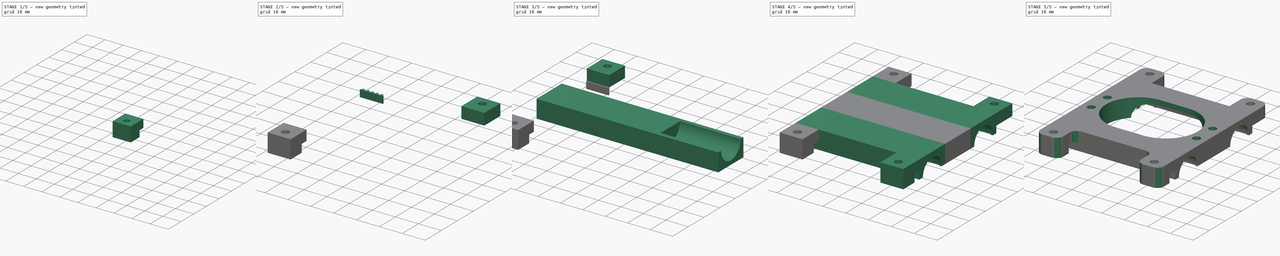
[diagram: build sequence overview — one tinted view per stage of 5, left to right]
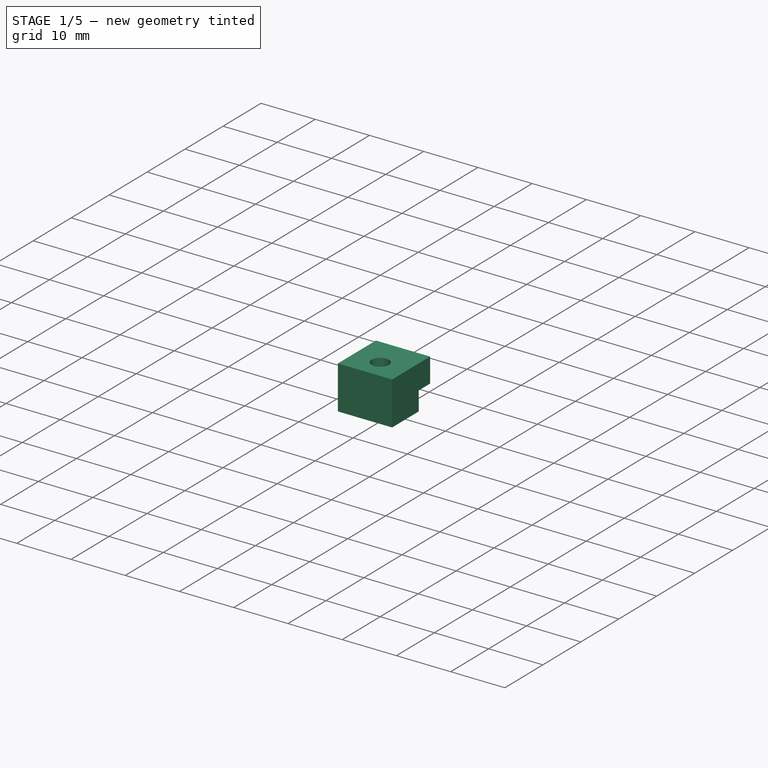
[diagram: stage 1 of 5 — iso view after this stage's code; geometry added in this stage tinted green]
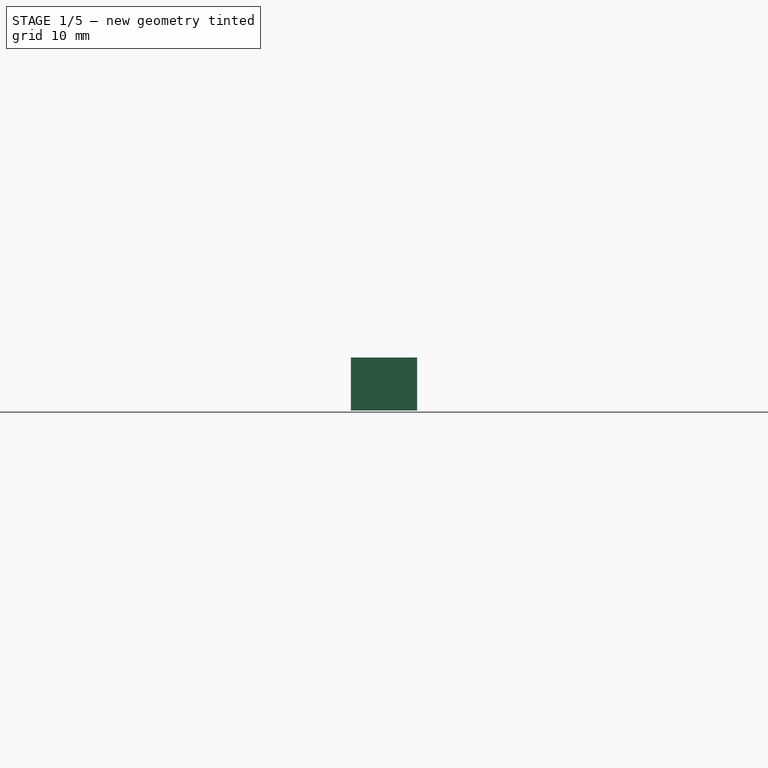
[diagram: stage 1 of 5 — front view after this stage's code; geometry added in this stage tinted green]
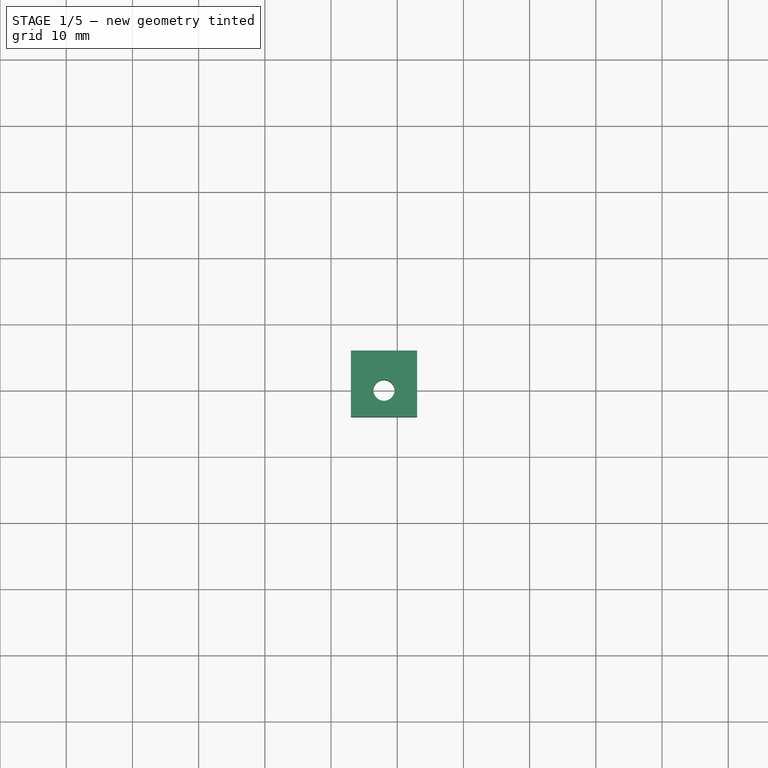
[diagram: stage 1 of 5 — top view after this stage's code; geometry added in this stage tinted green]
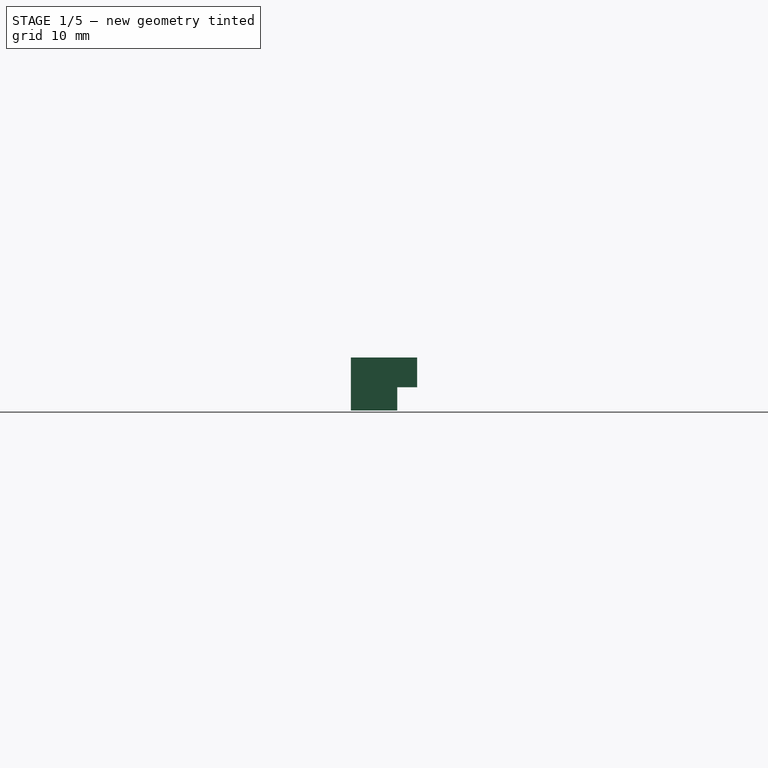
[diagram: stage 1 of 5 — right view after this stage's code; geometry added in this stage tinted green]
FCSTD DOCUMENT  (FreeCAD 0.18R14090 (Git))
Label: CarriageHalf
License: All rights reserved
LicenseURL: http://en.wikipedia.org/wiki/All_rights_reserved
objects: Sketcher::SketchObject×7, PartDesign::Pad×6, Part::Mirroring×4, Part::Box×4, PartDesign::Plane×3, PartDesign::Body×3, Part::Cylinder×2, Part::FeaturePython×2, App::Part×2, PartDesign::Fillet×2, Part::Cut×1, Part::MultiFuse×1, PartDesign::FeatureBase×1, PartDesign::Pocket×1
note: 44 computed .brp shape members not serialized (recipe doc carries the construction recipe); baked Part::Feature solids carry a one-line shape summary decoded from their .brp

FEATURE [Part::Box] Box001  label="ClipCube"
  AttacherType = Attacher::AttachEngine3D
  Height = 8
  Length = 10
  Width = 10
FEATURE [Part::Cylinder] Cylinder  label="ClipScrewHole"
  Angle = 360
  AttacherType = Attacher::AttachEngine3D
  Height = 8
  Placement = pos=(5,4,0) rot=(0,0,1;0rad)
  Radius = 1.6
FEATURE [Sketcher::SketchObject] Sketch015  label="HotendClampingSketch"
  MapMode = 5
  sketch-geometry (10):
    g0: ArcOfCircle CenterX=-6 CenterY=0 CenterZ=0 NormalX=0 NormalY=0 NormalZ=1 AngleXU=0 Radius=14 StartAngle=1.5708 EndAngle=4.71239
    g1: ArcOfCircle CenterX=6 CenterY=0 CenterZ=0 NormalX=0 NormalY=0 NormalZ=1 AngleXU=0 Radius=14 StartAngle=4.71239 EndAngle=7.85398
    g2: LineSegment StartX=-6 StartY=-14 StartZ=0 EndX=6 EndY=-14 EndZ=0
    g3: LineSegment StartX=-6 StartY=14 StartZ=0 EndX=6 EndY=14 EndZ=0
    g4: LineSegment [constr] StartX=-6 StartY=0 StartZ=0 EndX=0 EndY=0 EndZ=0
    g5: LineSegment [constr] StartX=0 StartY=0 StartZ=0 EndX=6 EndY=0 EndZ=0
    g6: Circle CenterX=23 CenterY=5 CenterZ=0 NormalX=0 NormalY=0 NormalZ=1 AngleXU=0 Radius=1.6
    g7: Circle CenterX=23 CenterY=-5 CenterZ=0 NormalX=0 NormalY=0 NormalZ=1 AngleXU=0 Radius=1.6
    g8: Circle CenterX=-23 CenterY=5 CenterZ=0 NormalX=0 NormalY=0 NormalZ=1 AngleXU=0 Radius=1.6
    g9: Circle CenterX=-23 CenterY=-5 CenterZ=0 NormalX=0 NormalY=0 NormalZ=1 AngleXU=0 Radius=1.6
  constraints (23):
    c: Tangent(g0,g3) = 1.5708
    c: Tangent(g0,g2) = -1.5708
    c: Tangent(g2,g1) = -1.5708
    c: Tangent(g3,g1) = 1.5708
    c: Horizontal(g2)
    c: Equal(g0,g1)
    c: PointOnObject(g0,g-1)
    c: Coincident(g4,g0)
    c: Coincident(g4,g-1)
    c: Coincident(g5,g-1)
    c: Coincident(g5,g1)
    c: Equal(g4,g5)
    c: Radius(g1) = 14
    c: Distance(g4) = 6
    c: Symmetric(g8,g6,g-2)
    c: Symmetric(g6,g7,g-1)
    c: Symmetric(g8,g9,g-1)
    c: Equal(g6,g8)
    c: Equal(g8,g9)
    c: Equal(g9,g7)
    c: Radius(g6) = 1.6
    c: Distance(g6,g8) = 46
    c: Distance(g6,g7) = 10
FEATURE [Part::Box] Box003  label="ClipBeltHole"
  AttacherType = Attacher::AttachEngine3D
  Height = 3.5
  Length = 10
  Placement = pos=(0,7,0) rot=(0,0,1;0rad)
  Width = 3
FEATURE [Part::FeaturePython] XOR  label="HalfClip"  # WARN: FeaturePython — macro-defined, semantics opaque (R4)
  Objects = -> [Box001,Cylinder,Box003]
  Placement = pos=(17,-34,-8) rot=(0,0,1;0rad)
  Tolerance = 0
FEATURE [Part::Mirroring] Part__Mirroring004  label="HalfClip_Mirror"
  Base = (0,0,0)
  Normal = (1,0,0)
  Source = -> XOR
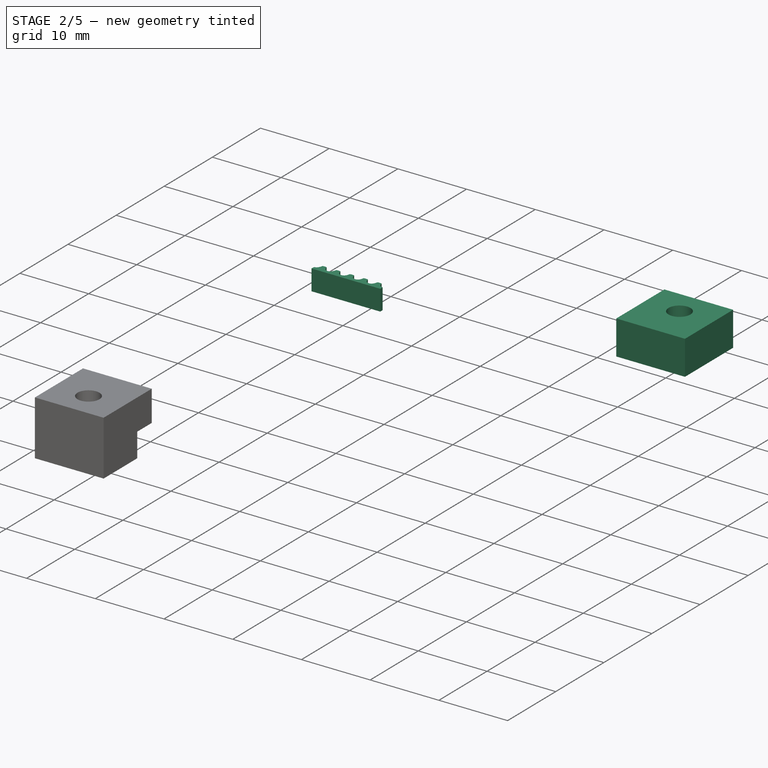
[diagram: stage 2 of 5 — iso view after this stage's code; geometry added in this stage tinted green]
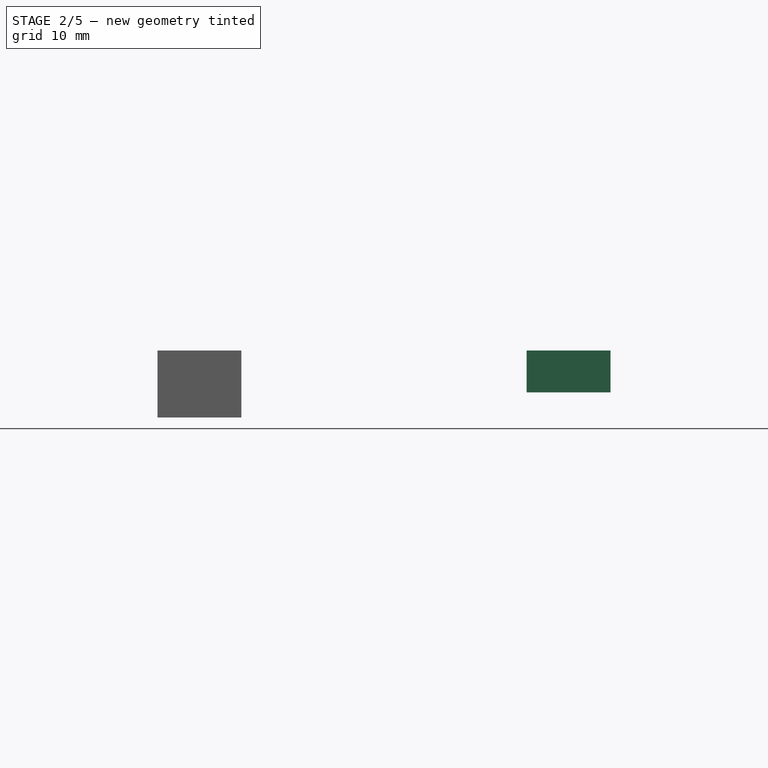
[diagram: stage 2 of 5 — front view after this stage's code; geometry added in this stage tinted green]
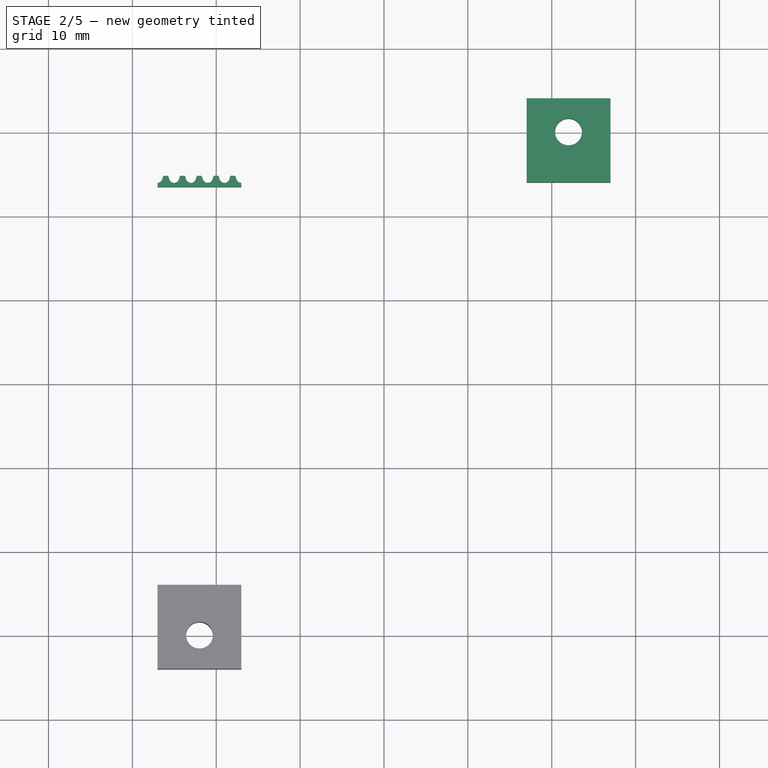
[diagram: stage 2 of 5 — top view after this stage's code; geometry added in this stage tinted green]
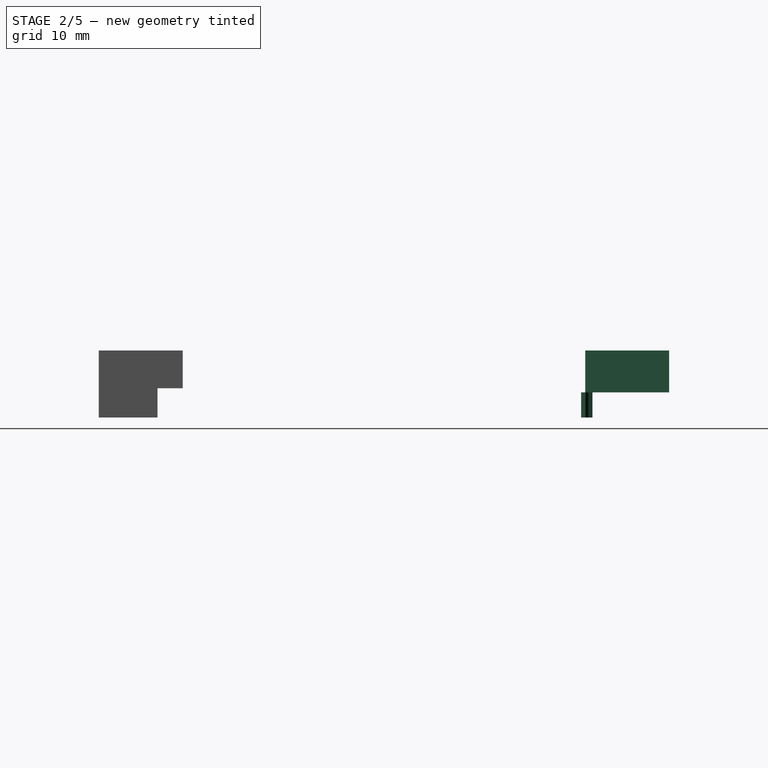
[diagram: stage 2 of 5 — right view after this stage's code; geometry added in this stage tinted green]
FEATURE [Part::Box] Box002  label="BeltClipCube"
  AttacherType = Attacher::AttachEngine3D
  Height = 5
  Length = 10
  Width = 10
FEATURE [Part::Cylinder] Cylinder001  label="BeltClipScrewHole"
  Angle = 360
  AttacherType = Attacher::AttachEngine3D
  Height = 5
  Placement = pos=(5,6,0) rot=(0,0,1;0rad)
  Radius = 1.6
FEATURE [Part::Cut] Cut001  label="BeltHalfClipCut"
  Base = -> Box002
  Placement = pos=(17,24,-5) rot=(0,0,1;0rad)
  Tool = -> Cylinder001
FEATURE [Sketcher::SketchObject] Sketch008  label="BT_TeethSketch"
  MapMode = 5
  Support = -> [XY_Plane006]
  sketch-geometry (8):
    g0: BSplineCurve PolesCount=12 KnotsCount=8 Degree=3 IsPeriodic=0
    g1: BSplineCurve PolesCount=12 KnotsCount=8 Degree=3 IsPeriodic=0
    g2: BSplineCurve PolesCount=12 KnotsCount=8 Degree=3 IsPeriodic=0
    g3: LineSegment StartX=10 StartY=0.5 StartZ=0 EndX=0 EndY=0.5 EndZ=0
    g4: LineSegment StartX=0 StartY=0.5 StartZ=0 EndX=0 EndY=0 EndZ=0
    g5: BSplineCurve PolesCount=12 KnotsCount=8 Degree=3 IsPeriodic=0
    g6: BSplineCurve PolesCount=12 KnotsCount=8 Degree=3 IsPeriodic=0
    g7: LineSegment StartX=10 StartY=0 StartZ=0 EndX=10 EndY=0.5 EndZ=0
  constraints (23):
    c: Coincident(g1,g0)
    c: PointOnObject(g0,g-1)
    c: PointOnObject(g1,g-1)
    c: PointOnObject(g2,g-1)
    c: Horizontal(g3)
    c: Coincident(g4,g3)
    c: Coincident(g4,g-1)
    c: Vertical(g4)
    c: Coincident(g5,g2)
    c: PointOnObject(g5,g-1)
    c: Coincident(g6,g5)
    c: PointOnObject(g6,g-1)
    c: Distance(g0,g0) = 2
    c: Distance(g0,g1) = 2
    c: Distance(g1,g2) = 2
    c: Distance(g2,g5) = 2
    c: Distance(g5,g6) = 2
    c: Coincident(g7,g6)
    c: Coincident(g7,g3)
    c: Vertical(g7)
    c: Coincident(g1,g2)
    c: Coincident(g0,g4)
    c: Distance(g4) = 0.5
FEATURE [PartDesign::Pad] Pad  label="BT_TeethPad"
  Length = 3
  Length2 = 100
  Profile = -> Sketch008
  Type = 0
FEATURE [PartDesign::Body] Body  label="BeltTeethBody"
  Group = -> [Sketch008,Pad]
  Origin = -> Origin006
  Placement = pos=(27,24,-8) rot=(0,0,1;3.14159rad)
  Tip = -> Pad
FEATURE [Part::Mirroring] Part__Mirroring003  label="BeltTeethBody_Mirror"
  Base = (0,0,0)
  Normal = (1,0,0)
  Source = -> Body
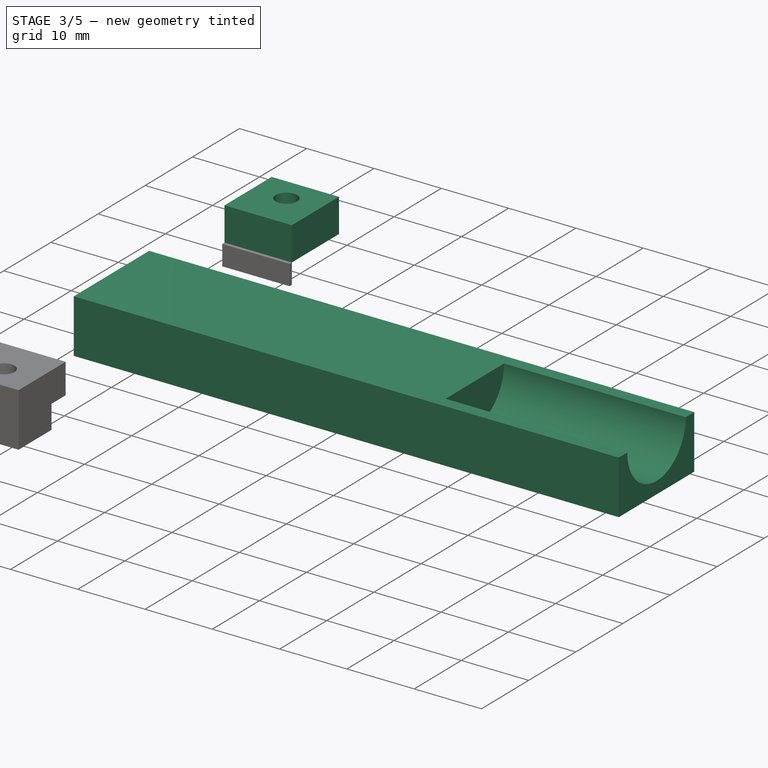
[diagram: stage 3 of 5 — iso view after this stage's code; geometry added in this stage tinted green]
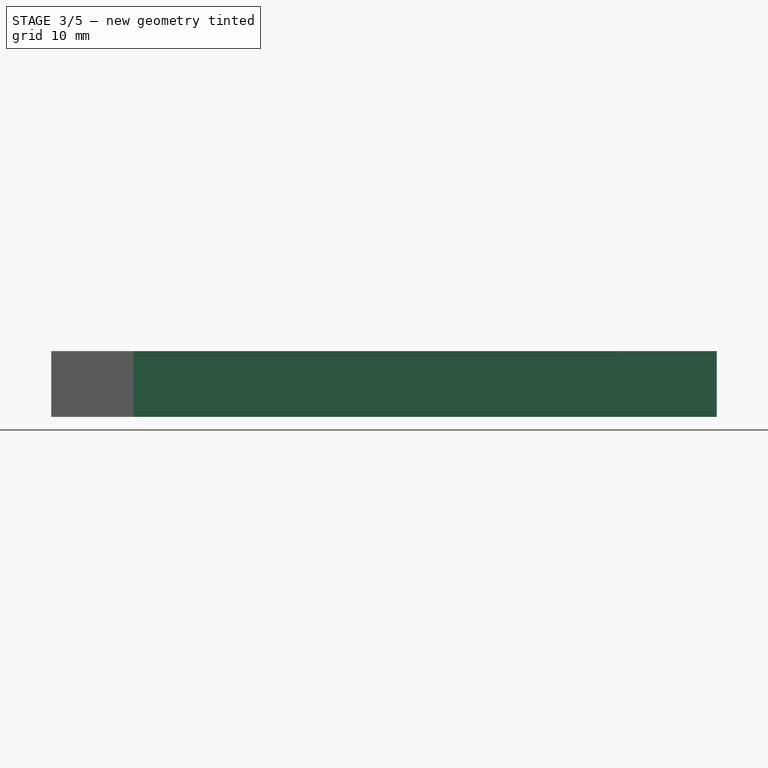
[diagram: stage 3 of 5 — front view after this stage's code; geometry added in this stage tinted green]
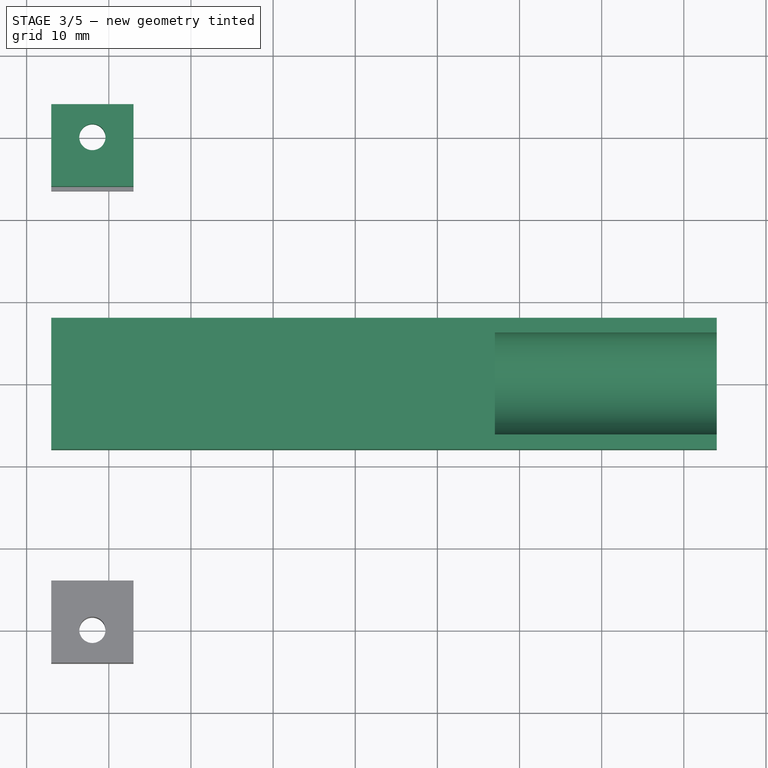
[diagram: stage 3 of 5 — top view after this stage's code; geometry added in this stage tinted green]
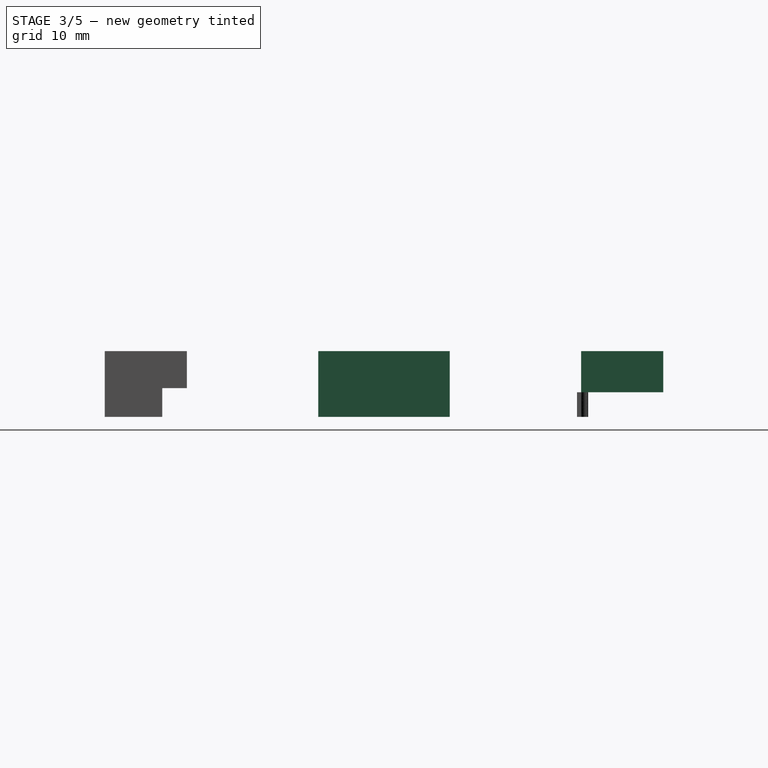
[diagram: stage 3 of 5 — right view after this stage's code; geometry added in this stage tinted green]
FEATURE [Sketcher::SketchObject] Sketch002  label="ClipSketch"
  MapMode = 5
  Placement = pos=(0,0,0) rot=(0.57735,0.57735,0.57735;2.0944rad)
  Support = -> [YZ_Plane002]
  sketch-geometry (6):
    g0: LineSegment StartX=-8 StartY=0 StartZ=0 EndX=-8 EndY=-8 EndZ=0
    g1: LineSegment StartX=8 StartY=0 StartZ=0 EndX=8 EndY=-8 EndZ=0
    g2: LineSegment StartX=-8 StartY=-8 StartZ=0 EndX=8 EndY=-8 EndZ=0
    g3: ArcOfCircle CenterX=0 CenterY=0 CenterZ=0 NormalX=0 NormalY=0 NormalZ=1 AngleXU=0 Radius=6.2 StartAngle=3.14159 EndAngle=6.28319
    g4: LineSegment StartX=-8 StartY=0 StartZ=0 EndX=-6.2 EndY=0 EndZ=0
    g5: LineSegment StartX=6.2 StartY=0 StartZ=0 EndX=8 EndY=0 EndZ=0
  constraints (17):
    c: Symmetric(g0,g1,g-2)
    c: PointOnObject(g0,g-1)
    c: Coincident(g2,g0)
    c: Coincident(g2,g1)
    c: Distance(g1) = 8
    c: PointOnObject(g3,g-1)
    c: PointOnObject(g3,g-1)
    c: Radius(g3) = 6.2
    c: Coincident(g3,g-1)
    c: Distance(g2) = 16
    c: Horizontal(g2)
    c: Vertical(g0)
    c: Coincident(g4,g0)
    c: Coincident(g4,g3)
    c: Coincident(g5,g3)
    c: Coincident(g5,g1)
    c: Vertical(g1)
FEATURE [Sketcher::SketchObject] Sketch001  label="ClipNotch1Sketch"
  ExternalGeometry = -> [Sketch002]
  MapMode = 5
  Placement = pos=(0,0,0) rot=(0.57735,0.57735,0.57735;2.0944rad)
  Support = -> [YZ_Plane002]
  sketch-geometry (4):
    g0: ArcOfCircle CenterX=0 CenterY=0 CenterZ=0 NormalX=0 NormalY=0 NormalZ=1 AngleXU=0 Radius=6.2 StartAngle=3.14159 EndAngle=6.28319
    g1: ArcOfCircle CenterX=0 CenterY=0 CenterZ=0 NormalX=0 NormalY=0 NormalZ=1 AngleXU=0 Radius=5.8 StartAngle=3.14159 EndAngle=6.28319
    g2: LineSegment StartX=-6.2 StartY=0 StartZ=0 EndX=-5.8 EndY=0 EndZ=0
    g3: LineSegment StartX=5.8 StartY=0 StartZ=0 EndX=6.2 EndY=0 EndZ=0
  constraints (11):
    c: Coincident(g0,g-1)
    c: Coincident(g0,g-3)
    c: PointOnObject(g0,g-1)
    c: Coincident(g1,g0)
    c: Coincident(g2,g0)
    c: Coincident(g2,g1)
    c: Horizontal(g2)
    c: Coincident(g3,g1)
    c: Coincident(g3,g0)
    c: Horizontal(g3)
    c: Radius(g1) = 5.8
FEATURE [PartDesign::Pad] Pad009  label="ClipPad"
  Length = 54
  Length2 = 100
  Placement = pos=(0,0,0) rot=(0.57735,0.57735,0.57735;2.0944rad)
  Profile = -> Sketch002
  Type = 0
FEATURE [PartDesign::Pad] Pad001  label="ClipNotch1Pad"
  BaseFeature = -> Pad009
  Length = 1
  Length2 = 100
  Placement = pos=(0,0,0) rot=(0.57735,0.57735,0.57735;2.0944rad)
  Profile = -> Sketch001
  Type = 0
FEATURE [Part::Box] Box  label="BaseCube"
  AttacherType = Attacher::AttachEngine3D
  Height = 8
  Length = 54
  Placement = pos=(-27,-8,-8) rot=(0,0,1;0rad)
  Width = 16
FEATURE [Part::Mirroring] Part__Mirroring002  label="BeltHalfClipCut_Mirror"
  Base = (0,0,0)
  Normal = (1,0,0)
  Source = -> Cut001
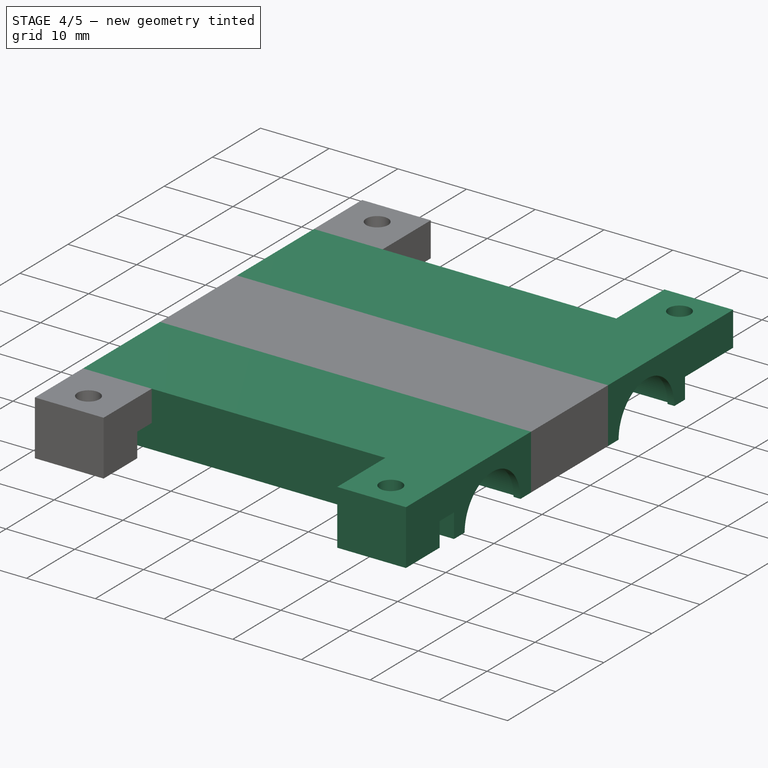
[diagram: stage 4 of 5 — iso view after this stage's code; geometry added in this stage tinted green]
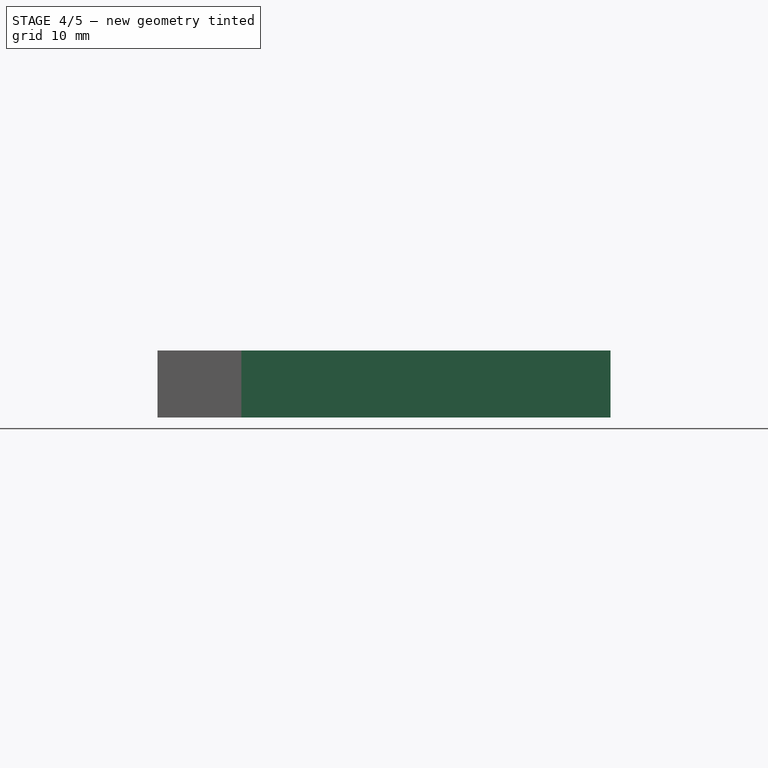
[diagram: stage 4 of 5 — front view after this stage's code; geometry added in this stage tinted green]
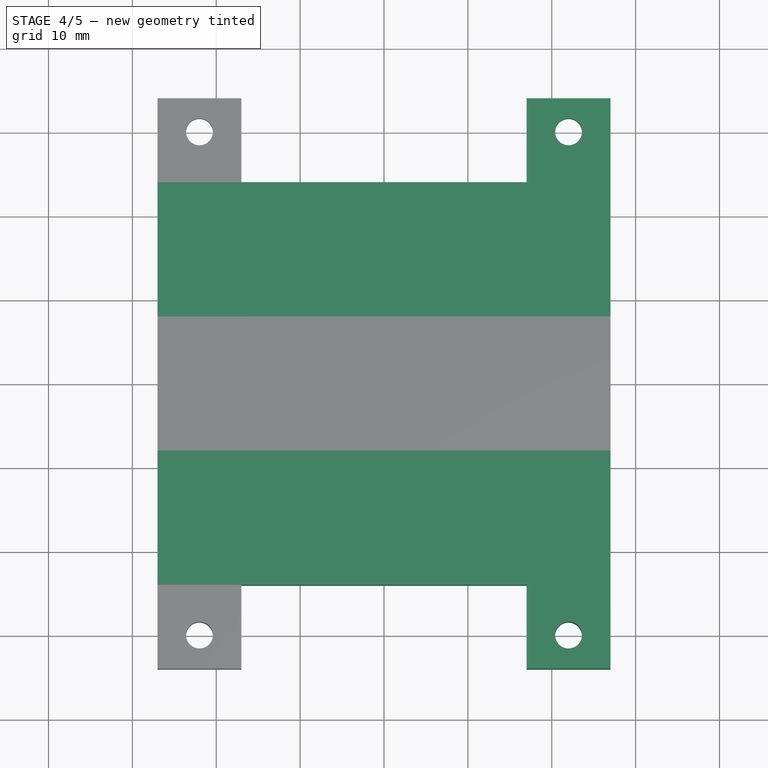
[diagram: stage 4 of 5 — top view after this stage's code; geometry added in this stage tinted green]
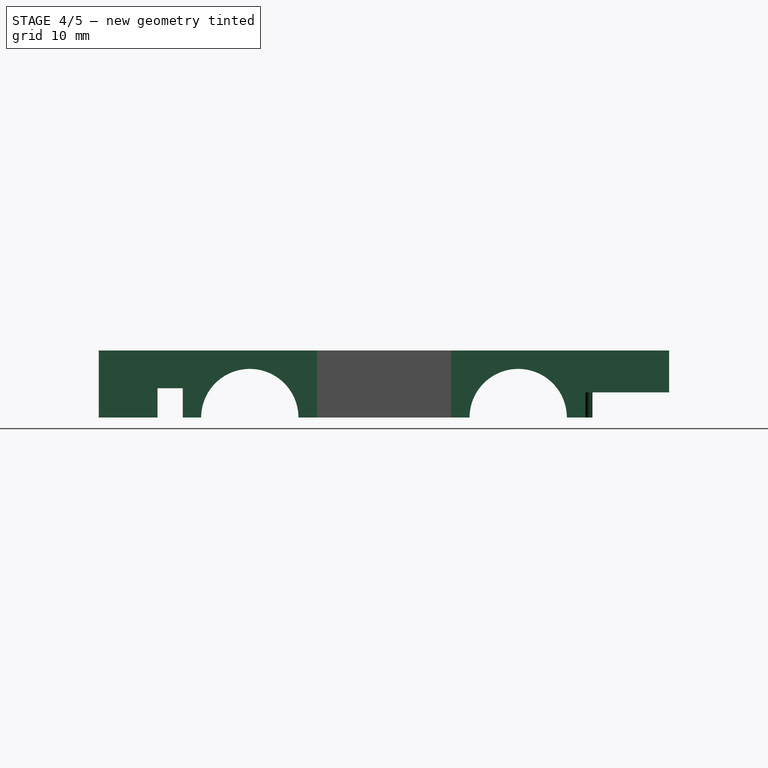
[diagram: stage 4 of 5 — right view after this stage's code; geometry added in this stage tinted green]
FEATURE [PartDesign::Plane] DatumPlane  label="ClipNotch2Plane"
  AttachmentOffset = pos=(0,0,13.5) rot=(0,0,1;0rad)
  MapMode = 5
  Placement = pos=(13.5,-2e-12,2e-12) rot=(0.57735,0.57735,0.57735;2.0944rad)
  Support = -> [YZ_Plane002]
FEATURE [Sketcher::SketchObject] Sketch003  label="ClipNotch2Sketch"
  ExternalGeometry = -> [Sketch001]
  MapMode = 5
  Placement = pos=(13.5,-2e-12,2e-12) rot=(0.57735,0.57735,0.57735;2.0944rad)
  Support = -> [DatumPlane]
  sketch-geometry (4):
    g0: ArcOfCircle CenterX=0 CenterY=0 CenterZ=0 NormalX=0 NormalY=0 NormalZ=1 AngleXU=0 Radius=6.2 StartAngle=3.14159 EndAngle=6.28319
    g1: ArcOfCircle CenterX=0 CenterY=0 CenterZ=0 NormalX=0 NormalY=0 NormalZ=1 AngleXU=0 Radius=5.8 StartAngle=3.14159 EndAngle=6.28319
    g2: LineSegment StartX=-6.2 StartY=0 StartZ=0 EndX=-5.8 EndY=0 EndZ=0
    g3: LineSegment StartX=5.8 StartY=0 StartZ=0 EndX=6.2 EndY=0 EndZ=0
  constraints (10):
    c: Coincident(g0,g-1)
    c: Coincident(g0,g-3)
    c: Coincident(g0,g-3)
    c: Coincident(g1,g0)
    c: Coincident(g1,g-4)
    c: Coincident(g1,g-4)
    c: Coincident(g2,g0)
    c: Coincident(g2,g1)
    c: Coincident(g3,g1)
    c: Coincident(g3,g0)
FEATURE [PartDesign::Pad] Pad010  label="ClipNotch2Pad"
  BaseFeature = -> Pad001
  Length = 1
  Length2 = 100
  Placement = pos=(0,0,0) rot=(0.57735,0.57735,0.57735;2.0944rad)
  Profile = -> Sketch003
  Reversed = true
  Type = 0
FEATURE [PartDesign::Plane] DatumPlane001  label="ClipNotch3Plane"
  AttachmentOffset = pos=(0,0,40.5) rot=(0,0,1;0rad)
  MapMode = 5
  Placement = pos=(40.5,-5e-12,5e-12) rot=(0.57735,0.57735,0.57735;2.0944rad)
  Support = -> [YZ_Plane002]
FEATURE [Sketcher::SketchObject] Sketch004  label="ClipNotch3Sketch"
  ExternalGeometry = -> [Sketch001]
  MapMode = 5
  Placement = pos=(40.5,-5e-12,5e-12) rot=(0.57735,0.57735,0.57735;2.0944rad)
  Support = -> [DatumPlane001]
  sketch-geometry (4):
    g0: ArcOfCircle CenterX=0 CenterY=0 CenterZ=0 NormalX=0 NormalY=0 NormalZ=1 AngleXU=0 Radius=5.8 StartAngle=3.14159 EndAngle=6.28319
    g1: ArcOfCircle CenterX=0 CenterY=0 CenterZ=0 NormalX=0 NormalY=0 NormalZ=1 AngleXU=0 Radius=6.2 StartAngle=3.14159 EndAngle=6.28319
    g2: LineSegment StartX=-6.2 StartY=0 StartZ=0 EndX=-5.8 EndY=0 EndZ=0
    g3: LineSegment StartX=5.8 StartY=0 StartZ=0 EndX=6.2 EndY=0 EndZ=0
  constraints (10):
    c: Coincident(g0,g-1)
    c: Coincident(g0,g-3)
    c: Coincident(g0,g-3)
    c: Coincident(g1,g0)
    c: Coincident(g1,g-4)
    c: Coincident(g1,g-4)
    c: Coincident(g2,g1)
    c: Coincident(g2,g0)
    c: Coincident(g3,g0)
    c: Coincident(g3,g1)
FEATURE [PartDesign::Pad] Pad011  label="ClipNotch3Pad"
  BaseFeature = -> Pad010
  Length = 1
  Length2 = 100
  Placement = pos=(0,0,0) rot=(0.57735,0.57735,0.57735;2.0944rad)
  Profile = -> Sketch004
  Type = 0
FEATURE [PartDesign::Plane] DatumPlane002  label="ClipNotch4Plane"
  AttachmentOffset = pos=(0,0,54) rot=(0,0,1;0rad)
  MapMode = 5
  Placement = pos=(54,-6e-12,6e-12) rot=(0.57735,0.57735,0.57735;2.0944rad)
  Support = -> [YZ_Plane002]
FEATURE [Sketcher::SketchObject] Sketch005  label="ClipNotch4Sketch"
  ExternalGeometry = -> [Sketch001]
  MapMode = 5
  Placement = pos=(54,-6e-12,6e-12) rot=(0.57735,0.57735,0.57735;2.0944rad)
  Support = -> [DatumPlane002]
  sketch-geometry (4):
    g0: ArcOfCircle CenterX=0 CenterY=0 CenterZ=0 NormalX=0 NormalY=0 NormalZ=1 AngleXU=0 Radius=5.8 StartAngle=3.14159 EndAngle=6.28319
    g1: ArcOfCircle CenterX=0 CenterY=0 CenterZ=0 NormalX=0 NormalY=0 NormalZ=1 AngleXU=0 Radius=6.2 StartAngle=3.14159 EndAngle=6.28319
    g2: LineSegment StartX=-6.2 StartY=0 StartZ=0 EndX=-5.8 EndY=0 EndZ=0
    g3: LineSegment StartX=5.8 StartY=0 StartZ=0 EndX=6.2 EndY=0 EndZ=0
  constraints (10):
    c: Coincident(g0,g-1)
    c: Coincident(g0,g-3)
    c: Coincident(g0,g-3)
    c: Coincident(g1,g0)
    c: Coincident(g1,g-4)
    c: Coincident(g1,g-4)
    c: Coincident(g2,g1)
    c: Coincident(g2,g0)
    c: Coincident(g3,g0)
    c: Coincident(g3,g1)
FEATURE [PartDesign::Pad] Pad012  label="ClipNotch4Pad"
  BaseFeature = -> Pad011
  Length = 1
  Length2 = 100
  Placement = pos=(0,0,0) rot=(0.57735,0.57735,0.57735;2.0944rad)
  Profile = -> Sketch005
  Reversed = true
  Type = 0
FEATURE [PartDesign::Body] Body001  label="Clip_LM6UU"
  Group = -> [Sketch002,Pad009,Sketch001,Pad001,DatumPlane,Sketch003,Pad010,DatumPlane001,Sketch004,Pad011,DatumPlane002,Sketch005,Pad012]
  Origin = -> Origin002
  Placement = pos=(-27,16,-8) rot=(1,0,0;3.14159rad)
  Tip = -> Pad012
FEATURE [Part::Mirroring] Part__Mirroring  label="Clip_LM6UU_Mirror"
  Base = (0,0,0)
  Normal = (0,1,0)
  Source = -> Body001
FEATURE [App::Part] Part  label="BaseObjects"
  Group = -> [Body001,Part__Mirroring,Box,Box001,Cylinder,Cut001,Cylinder001,Box002,Part__Mirroring002,Body,Part__Mirroring003,Box003,XOR,Part__Mirroring004]
  License = CC BY 3.0
  LicenseURL = http://creativecommons.org/licenses/by/3.0/
  Origin = -> Origin
FEATURE [Part::MultiFuse] Fusion  label="CarriageBaseObjectsFusion"
  Shapes = -> [Body001,Part__Mirroring,Box,Cut001,Part__Mirroring002,Body,Part__Mirroring003,XOR,Part__Mirroring004]
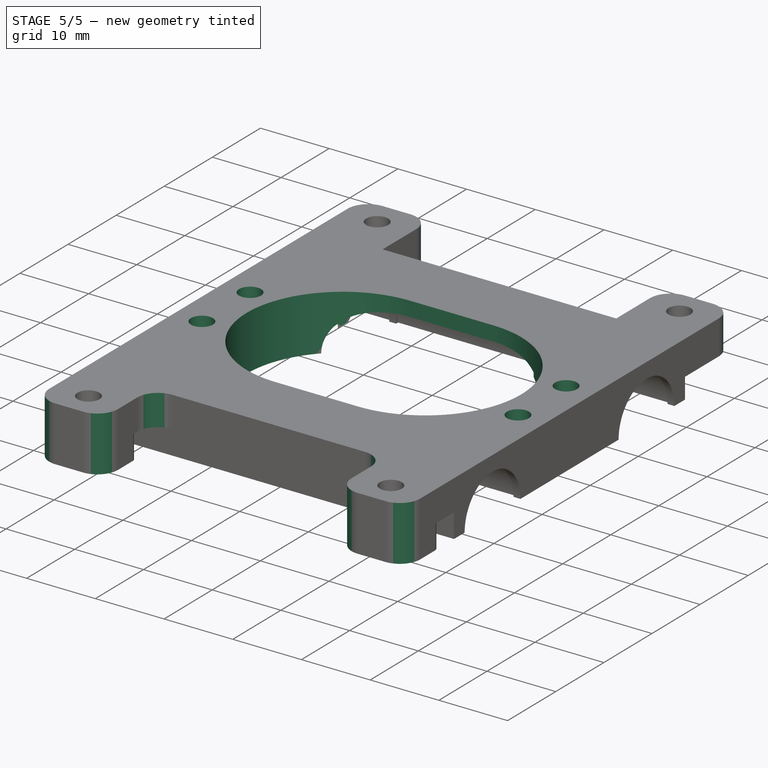
[diagram: stage 5 of 5 — iso view after this stage's code; geometry added in this stage tinted green]
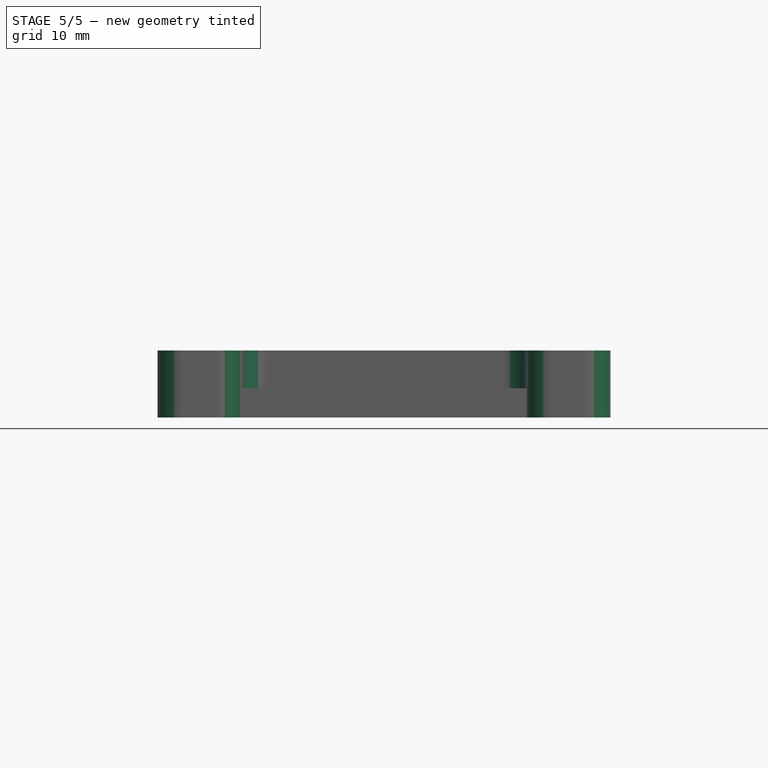
[diagram: stage 5 of 5 — front view after this stage's code; geometry added in this stage tinted green]
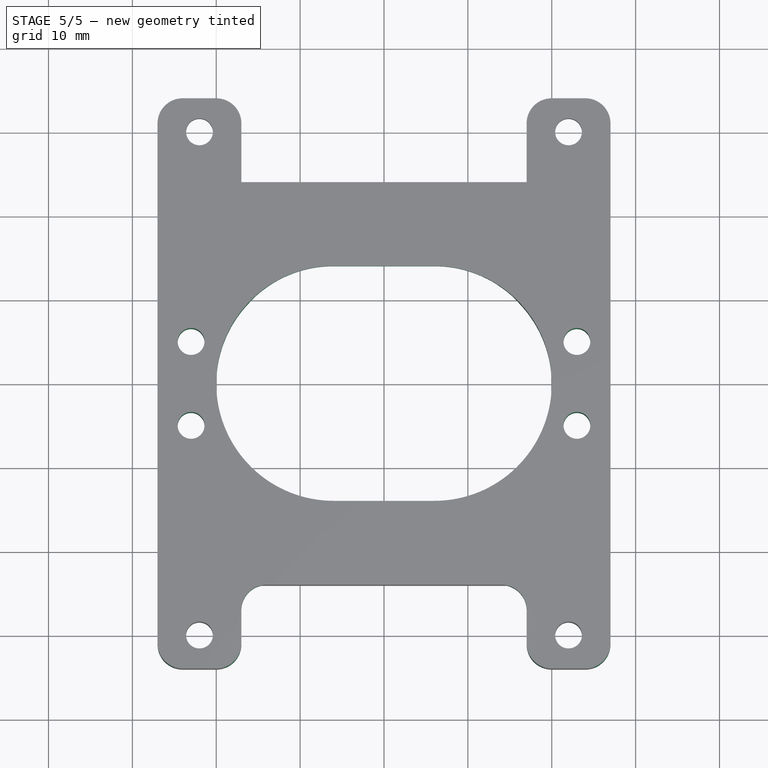
[diagram: stage 5 of 5 — top view after this stage's code; geometry added in this stage tinted green]
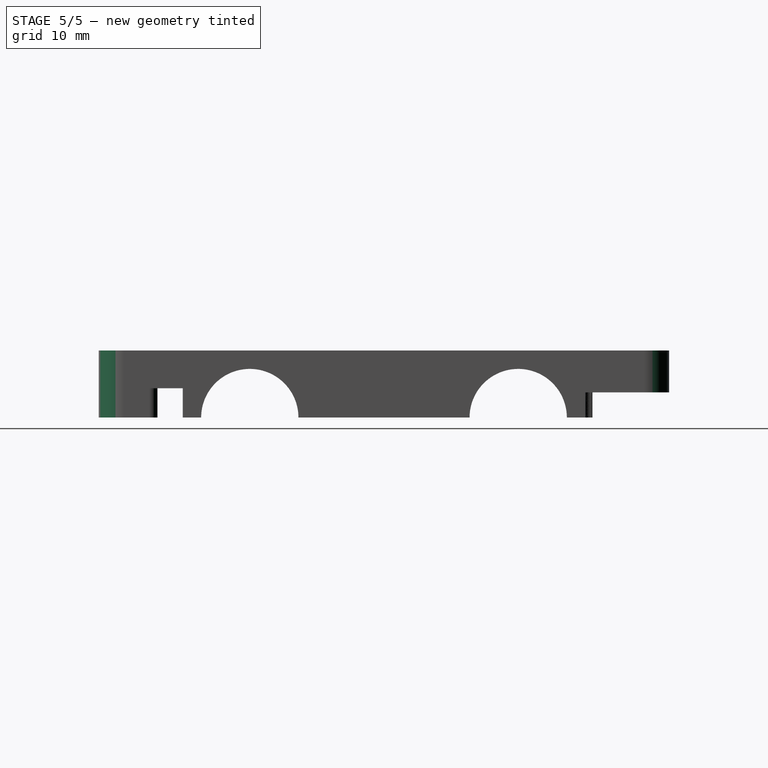
[diagram: stage 5 of 5 — right view after this stage's code; geometry added in this stage tinted green]
FEATURE [PartDesign::FeatureBase] BaseFeature  label="BaseObjectsFusion"
  BaseFeature = -> Fusion
FEATURE [PartDesign::Pocket] Pocket  label="HotendClampingPocket"
  BaseFeature = -> BaseFeature
  Length = 5
  Length2 = 100
  Profile = -> Sketch015
  Type = 1
FEATURE [PartDesign::Fillet] Fillet  label="CornersFillet"
  Base = -> Pocket [Edge290,Edge273,Edge210,Edge209,Edge270,Edge221,Edge51,Edge155,Edge178,Edge171]
  BaseFeature = -> Pocket
  Radius = 3
FEATURE [PartDesign::Fillet] Fillet001  label="ClipInnerFillet"
  Base = -> Fillet [Edge315,Edge322,Edge308,Edge238]
  BaseFeature = -> Fillet
  Radius = 1
FEATURE [PartDesign::Body] Body002  label="PostCuts"
  BaseFeature = -> Fusion
  Group = -> [BaseFeature,Sketch015,Pocket,Fillet,Fillet001]
  Origin = -> Origin008
  Tip = -> Fillet001
FEATURE [App::Part] Part001  label="CarriageHalf"
  Group = -> [Part,Body002]
  License = CC BY 3.0
  LicenseURL = http://creativecommons.org/licenses/by/3.0/
  Origin = -> Origin007
FEATURE [Part::FeaturePython] refine  label="CarriageHalf_Refined"  # WARN: FeaturePython — macro-defined, semantics opaque (R4)
  Base = -> Body002
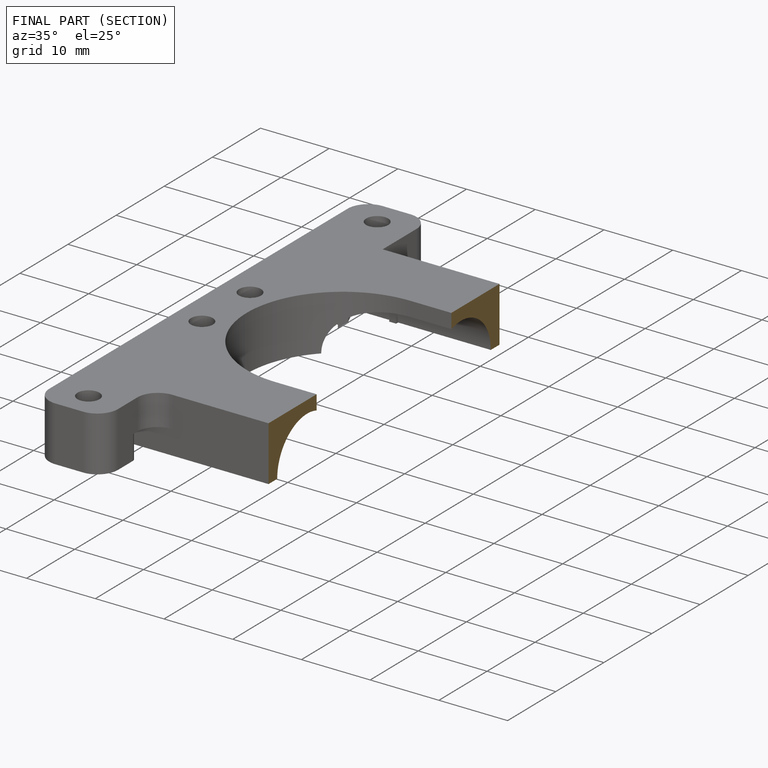
[diagram: finished part — half-section view (interior)]
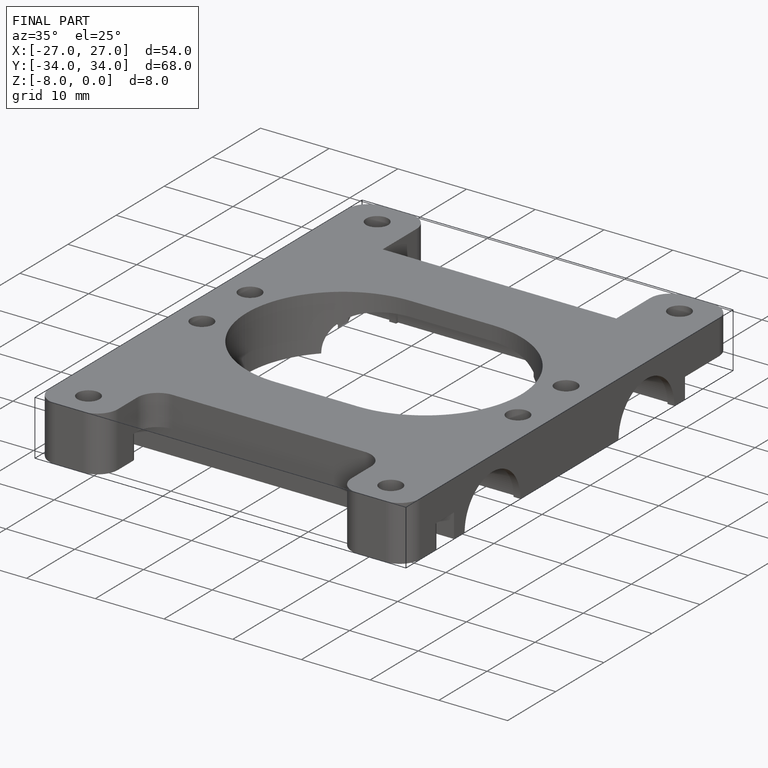
[diagram: finished part — iso view with bounding-box wireframe]
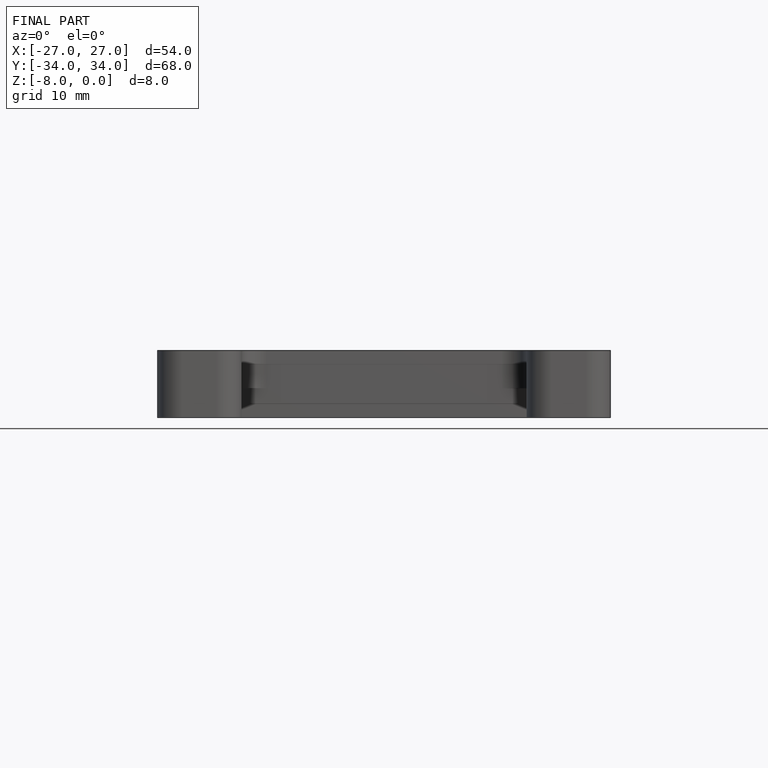
[diagram: finished part — front view with bounding-box wireframe]
